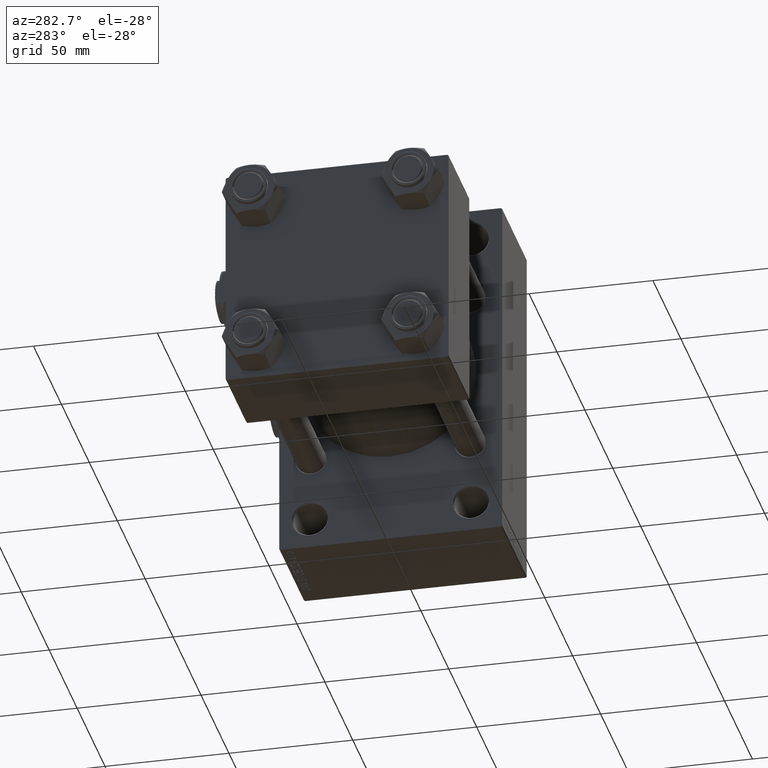
[diagram: clean part render]
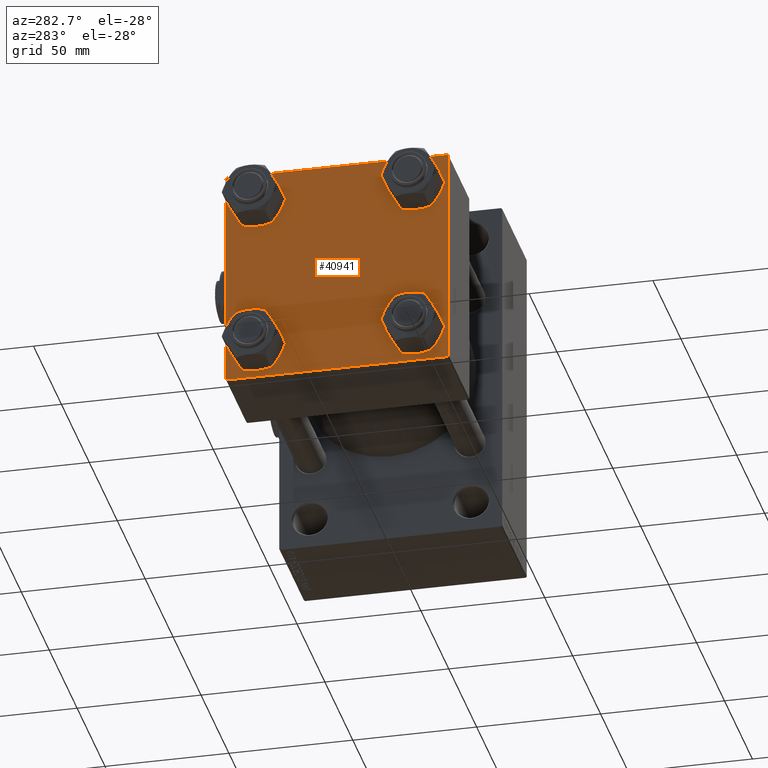
[diagram: same view with one face highlighted and labeled with its STEP entity id]
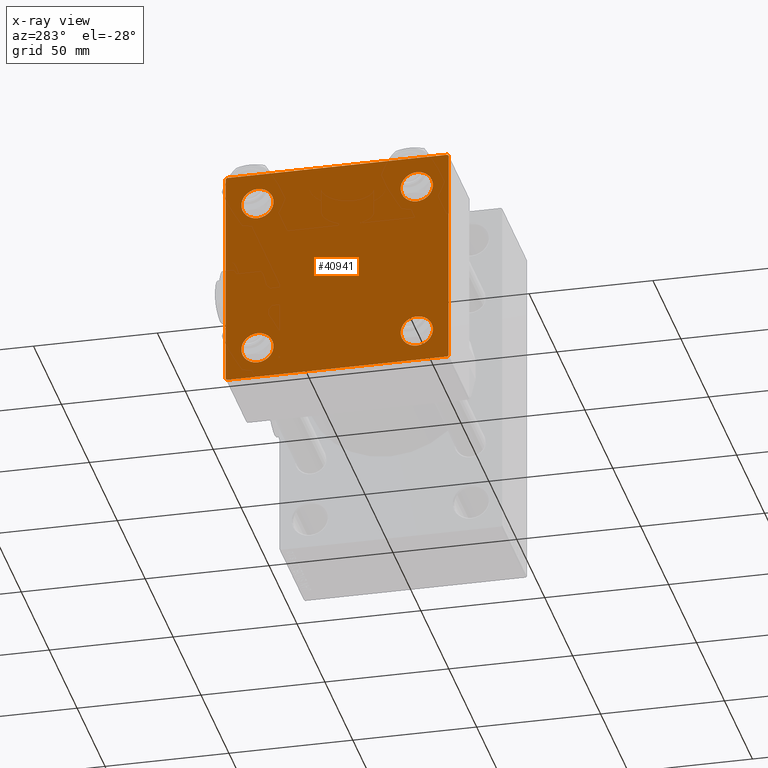
[diagram: x-ray of the same camera — body ghosted, the highlighted face saturated]
A machine part, auxiliary view. The second image highlights one B-rep face of the part: STEP entity #40941.
The next image is the same camera in x-ray: the body ghosted, the highlighted face saturated — about 0% of this face is hidden behind the body in this view.
In plain terms, the highlighted planar face has unit normal (-1, 0, 0).
Its self-contained STEP definition (entity closure, byte-faithful):
#62 = DIRECTION ( 'NONE',  ( 0.000000000000000000, -1.000000000000000000, -1.541976423090495387E-16 ) ) ;
#679 = EDGE_LOOP ( 'NONE', ( #48059, #14332 ) ) ;
#1115 = EDGE_CURVE ( 'NONE', #18708, #43532, #40982, .T. ) ;
#1399 = DIRECTION ( 'NONE',  ( 0.000000000000000000, 0.000000000000000000, 1.000000000000000000 ) ) ;
#1599 = CARTESIAN_POINT ( 'NONE',  ( 0.000000000000000000, 44.99999999999998579, -44.49999999999995737 ) ) ;
#1888 = AXIS2_PLACEMENT_3D ( 'NONE', #45711, #42450, #29882 ) ;
#2013 = EDGE_LOOP ( 'NONE', ( #11512, #9822 ) ) ;
#2731 = DIRECTION ( 'NONE',  ( -1.000000000000000000, 0.000000000000000000, -0.000000000000000000 ) ) ;
#3514 = VERTEX_POINT ( 'NONE', #46426 ) ;
#3884 = CIRCLE ( 'NONE', #6287, 6.499999999999977796 ) ;
#4170 = AXIS2_PLACEMENT_3D ( 'NONE', #32791, #6137, #13899 ) ;
#5113 = EDGE_CURVE ( 'NONE', #23593, #42400, #34388, .T. ) ;
#5785 = VECTOR ( 'NONE', #34812, 1000.000000000000000 ) ;
#6137 = DIRECTION ( 'NONE',  ( 1.000000000000000000, -0.000000000000000000, 0.000000000000000000 ) ) ;
#6152 = AXIS2_PLACEMENT_3D ( 'NONE', #32082, #40873, #1399 ) ;
#6287 = AXIS2_PLACEMENT_3D ( 'NONE', #10383, #22433, #7356 ) ;
#6729 = DIRECTION ( 'NONE',  ( 1.000000000000000000, -0.000000000000000000, 0.000000000000000000 ) ) ;
#7218 = DIRECTION ( 'NONE',  ( -0.000000000000000000, 0.7071067811865425767, 0.7071067811865524577 ) ) ;
#7356 = DIRECTION ( 'NONE',  ( 0.000000000000000000, 0.000000000000000000, 1.000000000000000000 ) ) ;
#8102 = DIRECTION ( 'NONE',  ( 1.000000000000000000, -0.000000000000000000, 0.000000000000000000 ) ) ;
#8556 = DIRECTION ( 'NONE',  ( 0.000000000000000000, 0.000000000000000000, 1.000000000000000000 ) ) ;
#9822 = ORIENTED_EDGE ( 'NONE', *, *, #45857, .T. ) ;
#10211 = CARTESIAN_POINT ( 'NONE',  ( 0.000000000000000000, -32.14999999999997726, -25.65000000000003411 ) ) ;
#10383 = CARTESIAN_POINT ( 'NONE',  ( 0.000000000000000000, 32.14999999999999147, 32.15000000000000568 ) ) ;
#10550 = CARTESIAN_POINT ( 'NONE',  ( 0.000000000000000000, 32.14999999999999147, 38.64999999999999147 ) ) ;
#10725 = LINE ( 'NONE', #22545, #18971 ) ;
#10768 = FACE_BOUND ( 'NONE', #679, .T. ) ;
#10772 = EDGE_CURVE ( 'NONE', #13768, #46627, #41304, .T. ) ;
#10974 = EDGE_LOOP ( 'NONE', ( #46938, #11228 ) ) ;
#11077 = CARTESIAN_POINT ( 'NONE',  ( 0.000000000000000000, -32.14999999999997726, 25.64999999999999147 ) ) ;
#11228 = ORIENTED_EDGE ( 'NONE', *, *, #49047, .T. ) ;
#11419 = CARTESIAN_POINT ( 'NONE',  ( 0.000000000000000000, -32.14999999999997726, 38.65000000000003411 ) ) ;
#11512 = ORIENTED_EDGE ( 'NONE', *, *, #44349, .T. ) ;
#11537 = CARTESIAN_POINT ( 'NONE',  ( 0.000000000000000000, -32.14999999999997726, -38.64999999999999147 ) ) ;
#11561 = EDGE_CURVE ( 'NONE', #34539, #33389, #13090, .T. ) ;
#11633 = LINE ( 'NONE', #22702, #30053 ) ;
#12316 = VERTEX_POINT ( 'NONE', #31806 ) ;
#13090 = LINE ( 'NONE', #35763, #41351 ) ;
#13276 = EDGE_CURVE ( 'NONE', #42892, #34539, #20012, .T. ) ;
#13439 = AXIS2_PLACEMENT_3D ( 'NONE', #42276, #43012, #8556 ) ;
#13720 = LINE ( 'NONE', #37140, #41688 ) ;
#13768 = VERTEX_POINT ( 'NONE', #11419 ) ;
#13899 = DIRECTION ( 'NONE',  ( 0.000000000000000000, 0.000000000000000000, 1.000000000000000000 ) ) ;
#14192 = CIRCLE ( 'NONE', #39923, 6.499999999999977796 ) ;
#14332 = ORIENTED_EDGE ( 'NONE', *, *, #15311, .T. ) ;
#14560 = ORIENTED_EDGE ( 'NONE', *, *, #29824, .F. ) ;
#15000 = AXIS2_PLACEMENT_3D ( 'NONE', #37200, #2731, #18049 ) ;
#15054 = CARTESIAN_POINT ( 'NONE',  ( 0.000000000000000000, 44.99999999999998579, 44.50000000000001421 ) ) ;
#15311 = EDGE_CURVE ( 'NONE', #46627, #13768, #30103, .T. ) ;
#17159 = ORIENTED_EDGE ( 'NONE', *, *, #11561, .T. ) ;
#17206 = ORIENTED_EDGE ( 'NONE', *, *, #43760, .T. ) ;
#18049 = DIRECTION ( 'NONE',  ( -0.000000000000000000, 0.000000000000000000, 1.000000000000000000 ) ) ;
#18341 = VERTEX_POINT ( 'NONE', #10550 ) ;
#18594 = VECTOR ( 'NONE', #7218, 1000.000000000000114 ) ;
#18708 = VERTEX_POINT ( 'NONE', #10211 ) ;
#18971 = VECTOR ( 'NONE', #33876, 1000.000000000000114 ) ;
#19050 = CIRCLE ( 'NONE', #13439, 6.499999999999977796 ) ;
#19259 = DIRECTION ( 'NONE',  ( 0.000000000000000000, -1.000000000000000000, -1.541976423090495633E-16 ) ) ;
#19886 = DIRECTION ( 'NONE',  ( 1.000000000000000000, -0.000000000000000000, 0.000000000000000000 ) ) ;
#19892 = ORIENTED_EDGE ( 'NONE', *, *, #32907, .T. ) ;
#19904 = DIRECTION ( 'NONE',  ( 0.000000000000000000, 0.000000000000000000, 1.000000000000000000 ) ) ;
#20012 = LINE ( 'NONE', #42423, #29393 ) ;
#20273 = VERTEX_POINT ( 'NONE', #48328 ) ;
#20637 = CARTESIAN_POINT ( 'NONE',  ( 0.000000000000000000, -32.14999999999997726, 32.15000000000001279 ) ) ;
#21831 = PLANE ( 'NONE',  #15000 ) ;
#22433 = DIRECTION ( 'NONE',  ( 1.000000000000000000, -0.000000000000000000, 0.000000000000000000 ) ) ;
#22545 = CARTESIAN_POINT ( 'NONE',  ( 0.000000000000000000, 44.74999999999999289, 44.74999999999999289 ) ) ;
#22553 = ORIENTED_EDGE ( 'NONE', *, *, #49583, .T. ) ;
#22702 = CARTESIAN_POINT ( 'NONE',  ( 0.000000000000000000, 44.99999999999998579, 45.00000000000001421 ) ) ;
#23593 = VERTEX_POINT ( 'NONE', #44962 ) ;
#23790 = EDGE_LOOP ( 'NONE', ( #22553, #24443, #29222, #17159, #14560, #36756, #43011, #17206 ) ) ;
#24377 = CIRCLE ( 'NONE', #1888, 6.499999999999977796 ) ;
#24443 = ORIENTED_EDGE ( 'NONE', *, *, #38042, .T. ) ;
#24985 = LINE ( 'NONE', #25230, #37391 ) ;
#25230 = CARTESIAN_POINT ( 'NONE',  ( 0.000000000000000000, 44.74999999999998579, -44.74999999999998579 ) ) ;
#25617 = FACE_OUTER_BOUND ( 'NONE', #23790, .T. ) ;
#26336 = CARTESIAN_POINT ( 'NONE',  ( -0.000000000000000000, -44.75000000000029843, 44.74999999999967315 ) ) ;
#29012 = VERTEX_POINT ( 'NONE', #15054 ) ;
#29222 = ORIENTED_EDGE ( 'NONE', *, *, #13276, .T. ) ;
#29393 = VECTOR ( 'NONE', #19259, 1000.000000000000000 ) ;
#29408 = FACE_BOUND ( 'NONE', #2013, .T. ) ;
#29587 = DIRECTION ( 'NONE',  ( 0.000000000000000000, 0.000000000000000000, -1.000000000000000000 ) ) ;
#29824 = EDGE_CURVE ( 'NONE', #23593, #33389, #30043, .T. ) ;
#29882 = DIRECTION ( 'NONE',  ( 0.000000000000000000, 0.000000000000000000, 1.000000000000000000 ) ) ;
#30043 = LINE ( 'NONE', #41619, #5785 ) ;
#30053 = VECTOR ( 'NONE', #62, 1000.000000000000000 ) ;
#30103 = CIRCLE ( 'NONE', #40557, 6.500000000000019540 ) ;
#30208 = CARTESIAN_POINT ( 'NONE',  ( 0.000000000000000000, -44.49999999999995737, -45.00000000000000000 ) ) ;
#31690 = AXIS2_PLACEMENT_3D ( 'NONE', #20637, #19886, #35005 ) ;
#31806 = CARTESIAN_POINT ( 'NONE',  ( 0.000000000000000000, 44.49999999999998579, 45.00000000000001421 ) ) ;
#31969 = DIRECTION ( 'NONE',  ( 0.000000000000000000, -0.7071067811865474617, 0.7071067811865474617 ) ) ;
#32082 = CARTESIAN_POINT ( 'NONE',  ( 0.000000000000000000, 32.14999999999999147, 32.15000000000000568 ) ) ;
#32788 = DIRECTION ( 'NONE',  ( -0.000000000000000000, -0.7071067811865474617, -0.7071067811865474617 ) ) ;
#32791 = CARTESIAN_POINT ( 'NONE',  ( 0.000000000000000000, -32.14999999999997726, -32.15000000000001279 ) ) ;
#32907 = EDGE_CURVE ( 'NONE', #43532, #18708, #24377, .T. ) ;
#33389 = VERTEX_POINT ( 'NONE', #44844 ) ;
#33642 = CARTESIAN_POINT ( 'NONE',  ( 0.000000000000000000, -32.14999999999997726, 32.15000000000001279 ) ) ;
#33876 = DIRECTION ( 'NONE',  ( 0.000000000000000000, 0.7071067811865474617, -0.7071067811865474617 ) ) ;
#34167 = EDGE_CURVE ( 'NONE', #12316, #42400, #11633, .T. ) ;
#34388 = LINE ( 'NONE', #26336, #18594 ) ;
#34539 = VERTEX_POINT ( 'NONE', #30208 ) ;
#34812 = DIRECTION ( 'NONE',  ( 0.000000000000000000, 7.709882115452476934E-17, -1.000000000000000000 ) ) ;
#35005 = DIRECTION ( 'NONE',  ( 0.000000000000000000, 0.000000000000000000, 1.000000000000000000 ) ) ;
#35763 = CARTESIAN_POINT ( 'NONE',  ( 0.000000000000000000, -44.74999999999998579, -44.74999999999998579 ) ) ;
#36167 = CARTESIAN_POINT ( 'NONE',  ( 0.000000000000000000, 44.49999999999998579, -44.99999999999998579 ) ) ;
#36756 = ORIENTED_EDGE ( 'NONE', *, *, #5113, .T. ) ;
#37140 = CARTESIAN_POINT ( 'NONE',  ( 0.000000000000000000, 44.99999999999998579, 45.00000000000001421 ) ) ;
#37200 = CARTESIAN_POINT ( 'NONE',  ( 0.000000000000000000, 0.000000000000000000, 0.000000000000000000 ) ) ;
#37391 = VECTOR ( 'NONE', #32788, 1000.000000000000114 ) ;
#38042 = EDGE_CURVE ( 'NONE', #48901, #42892, #24985, .T. ) ;
#39923 = AXIS2_PLACEMENT_3D ( 'NONE', #42078, #8102, #19904 ) ;
#40557 = AXIS2_PLACEMENT_3D ( 'NONE', #33642, #6729, #48990 ) ;
#40873 = DIRECTION ( 'NONE',  ( 1.000000000000000000, -0.000000000000000000, 0.000000000000000000 ) ) ;
#40941 = ADVANCED_FACE ( 'NONE', ( #10768, #41470, #29408, #44745, #25617 ), #21831, .T. ) ;
#40982 = CIRCLE ( 'NONE', #4170, 6.499999999999977796 ) ;
#41304 = CIRCLE ( 'NONE', #31690, 6.500000000000019540 ) ;
#41351 = VECTOR ( 'NONE', #31969, 1000.000000000000114 ) ;
#41470 = FACE_BOUND ( 'NONE', #47766, .T. ) ;
#41619 = CARTESIAN_POINT ( 'NONE',  ( 0.000000000000000000, -45.00000000000000711, 45.00000000000000000 ) ) ;
#41688 = VECTOR ( 'NONE', #29587, 1000.000000000000000 ) ;
#42078 = CARTESIAN_POINT ( 'NONE',  ( 0.000000000000000000, 32.14999999999999147, -32.15000000000000568 ) ) ;
#42193 = VERTEX_POINT ( 'NONE', #46366 ) ;
#42276 = CARTESIAN_POINT ( 'NONE',  ( 0.000000000000000000, 32.14999999999999147, -32.15000000000000568 ) ) ;
#42400 = VERTEX_POINT ( 'NONE', #44317 ) ;
#42423 = CARTESIAN_POINT ( 'NONE',  ( 0.000000000000000000, 44.99999999999998579, -44.99999999999998579 ) ) ;
#42450 = DIRECTION ( 'NONE',  ( 1.000000000000000000, -0.000000000000000000, 0.000000000000000000 ) ) ;
#42892 = VERTEX_POINT ( 'NONE', #36167 ) ;
#43011 = ORIENTED_EDGE ( 'NONE', *, *, #34167, .F. ) ;
#43012 = DIRECTION ( 'NONE',  ( 1.000000000000000000, -0.000000000000000000, 0.000000000000000000 ) ) ;
#43532 = VERTEX_POINT ( 'NONE', #11537 ) ;
#43760 = EDGE_CURVE ( 'NONE', #12316, #29012, #10725, .T. ) ;
#43996 = EDGE_CURVE ( 'NONE', #18341, #42193, #49509, .T. ) ;
#44317 = CARTESIAN_POINT ( 'NONE',  ( 0.000000000000000000, -44.49999999999995737, 45.00000000000000000 ) ) ;
#44349 = EDGE_CURVE ( 'NONE', #20273, #3514, #14192, .T. ) ;
#44469 = ORIENTED_EDGE ( 'NONE', *, *, #1115, .T. ) ;
#44745 = FACE_BOUND ( 'NONE', #10974, .T. ) ;
#44844 = CARTESIAN_POINT ( 'NONE',  ( 0.000000000000000000, -45.00000000000000000, -44.49999999999995737 ) ) ;
#44962 = CARTESIAN_POINT ( 'NONE',  ( 0.000000000000000000, -45.00000000000000711, 44.49999999999997158 ) ) ;
#45711 = CARTESIAN_POINT ( 'NONE',  ( 0.000000000000000000, -32.14999999999997726, -32.15000000000001279 ) ) ;
#45857 = EDGE_CURVE ( 'NONE', #3514, #20273, #19050, .T. ) ;
#46366 = CARTESIAN_POINT ( 'NONE',  ( 0.000000000000000000, 32.14999999999999147, 25.65000000000002700 ) ) ;
#46426 = CARTESIAN_POINT ( 'NONE',  ( 0.000000000000000000, 32.14999999999999147, -38.64999999999998437 ) ) ;
#46627 = VERTEX_POINT ( 'NONE', #11077 ) ;
#46938 = ORIENTED_EDGE ( 'NONE', *, *, #43996, .T. ) ;
#47766 = EDGE_LOOP ( 'NONE', ( #44469, #19892 ) ) ;
#48059 = ORIENTED_EDGE ( 'NONE', *, *, #10772, .T. ) ;
#48328 = CARTESIAN_POINT ( 'NONE',  ( 0.000000000000000000, 32.14999999999999147, -25.65000000000002700 ) ) ;
#48901 = VERTEX_POINT ( 'NONE', #1599 ) ;
#48990 = DIRECTION ( 'NONE',  ( 0.000000000000000000, 0.000000000000000000, 1.000000000000000000 ) ) ;
#49047 = EDGE_CURVE ( 'NONE', #42193, #18341, #3884, .T. ) ;
#49509 = CIRCLE ( 'NONE', #6152, 6.499999999999977796 ) ;
#49583 = EDGE_CURVE ( 'NONE', #29012, #48901, #13720, .T. ) ;